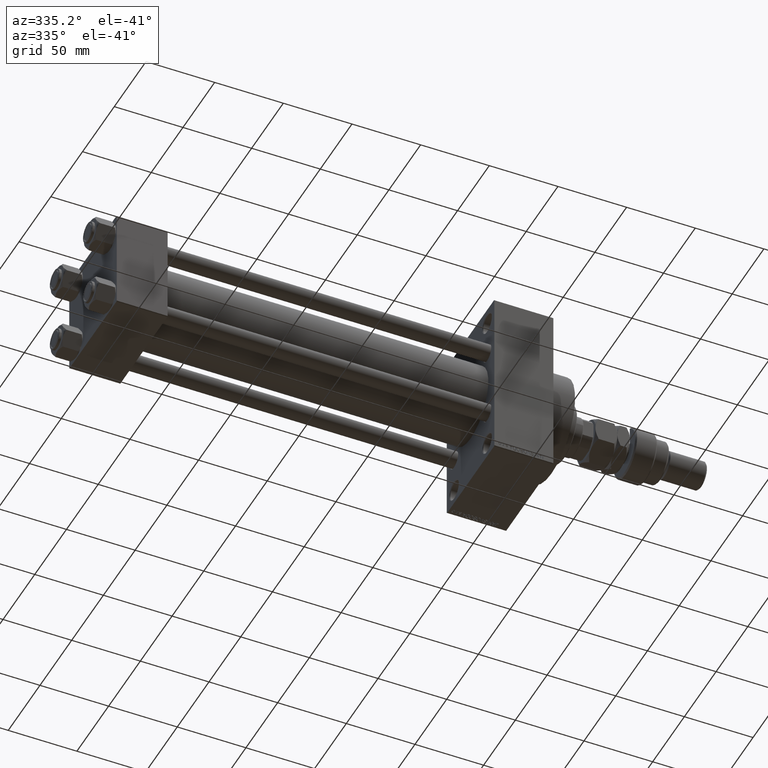
[diagram: clean part render]
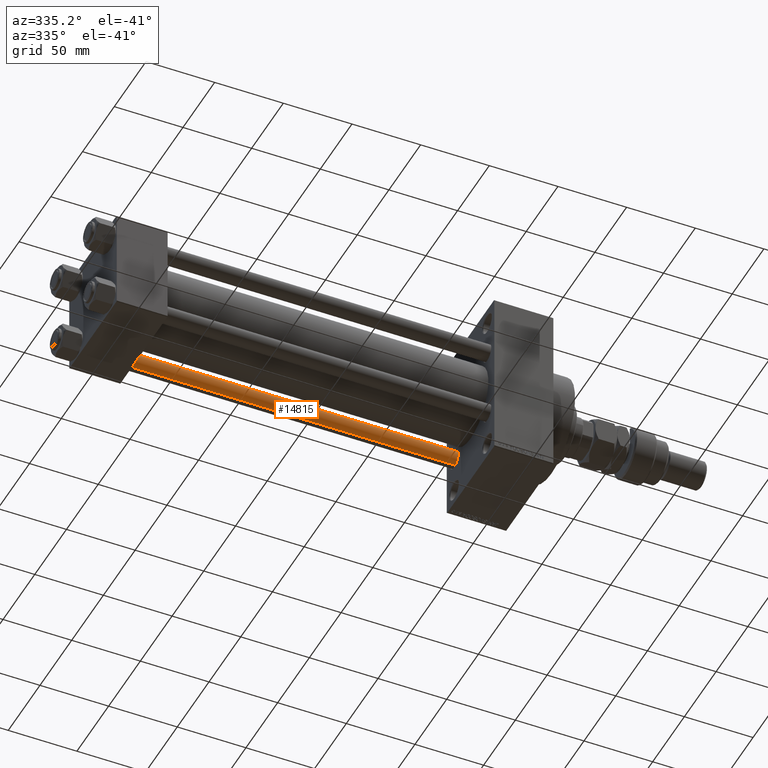
[diagram: same view with one face highlighted and labeled with its STEP entity id]
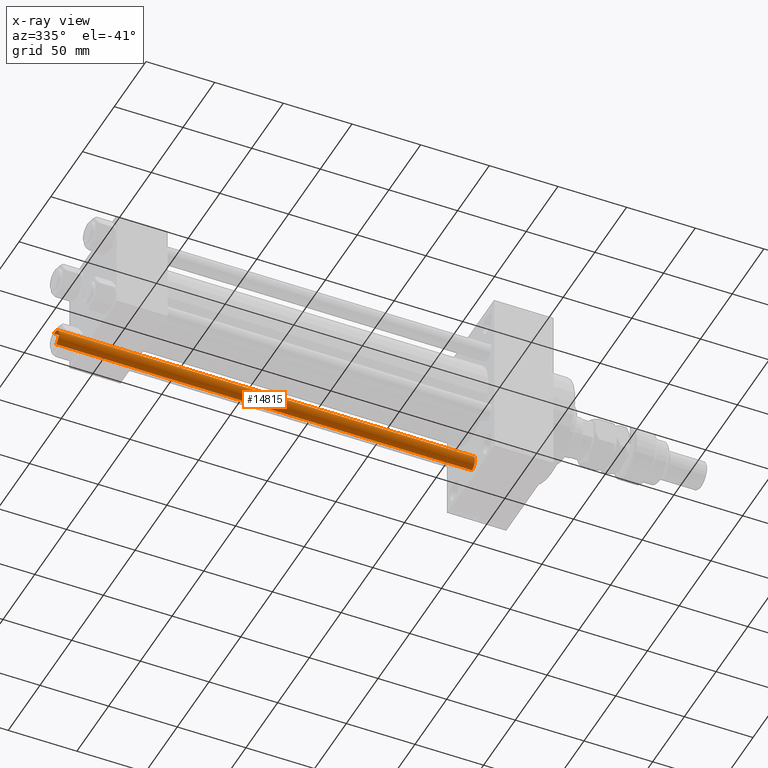
[diagram: x-ray of the same camera — body ghosted, the highlighted face saturated]
A machine part, auxiliary view. The second image highlights one B-rep face of the part: STEP entity #14815.
The next image is the same camera in x-ray: the body ghosted, the highlighted face saturated — about 0% of this face is hidden behind the body in this view.
In plain terms, the highlighted cylindrical surface (edge-blend (fillet) strip) has radius 6 mm, axis along (1, -0, 0).
Its self-contained STEP definition (entity closure, byte-faithful):
#626 = DIRECTION ( 'NONE',  ( 0.000000000000000000, 0.000000000000000000, -1.000000000000000000 ) ) ;
#2727 = DIRECTION ( 'NONE',  ( -0.000000000000000000, -0.000000000000000000, -1.000000000000000000 ) ) ;
#4146 = DIRECTION ( 'NONE',  ( 1.000000000000000000, 0.000000000000000000, 0.000000000000000000 ) ) ;
#4247 = CARTESIAN_POINT ( 'NONE',  ( -6.000000000000000888, 0.000000000000000000, 304.0000000000000000 ) ) ;
#4785 = CARTESIAN_POINT ( 'NONE',  ( 0.000000000000000000, 0.000000000000000000, 304.0000000000000000 ) ) ;
#5964 = EDGE_CURVE ( 'NONE', #21666, #41880, #38725, .T. ) ;
#6347 = CARTESIAN_POINT ( 'NONE',  ( 6.000000000000000888, 7.347880794884120722E-16, 303.5000000000000000 ) ) ;
#6749 = VERTEX_POINT ( 'NONE', #6347 ) ;
#7705 = CARTESIAN_POINT ( 'NONE',  ( 6.000000000000000888, 7.347880794884120722E-16, 0.4999999999999449329 ) ) ;
#8120 = CARTESIAN_POINT ( 'NONE',  ( 0.000000000000000000, 0.000000000000000000, 0.4999999999999449329 ) ) ;
#10819 = ORIENTED_EDGE ( 'NONE', *, *, #34172, .T. ) ;
#11764 = EDGE_LOOP ( 'NONE', ( #30349, #10819, #36656, #21894 ) ) ;
#11936 = DIRECTION ( 'NONE',  ( -0.000000000000000000, -0.000000000000000000, -1.000000000000000000 ) ) ;
#13284 = CARTESIAN_POINT ( 'NONE',  ( -6.000000000000000888, 0.000000000000000000, 303.5000000000000000 ) ) ;
#14815 = ADVANCED_FACE ( 'NONE', ( #16720 ), #49254, .T. ) ;
#16720 = FACE_OUTER_BOUND ( 'NONE', #11764, .T. ) ;
#19851 = AXIS2_PLACEMENT_3D ( 'NONE', #27892, #626, #44821 ) ;
#21666 = VERTEX_POINT ( 'NONE', #37488 ) ;
#21894 = ORIENTED_EDGE ( 'NONE', *, *, #5964, .T. ) ;
#25428 = DIRECTION ( 'NONE',  ( -1.000000000000000000, 0.000000000000000000, 0.000000000000000000 ) ) ;
#27892 = CARTESIAN_POINT ( 'NONE',  ( 0.000000000000000000, 0.000000000000000000, 303.5000000000000000 ) ) ;
#28319 = CIRCLE ( 'NONE', #19851, 6.000000000000000888 ) ;
#29267 = VECTOR ( 'NONE', #11936, 1000.000000000000000 ) ;
#29388 = DIRECTION ( 'NONE',  ( -0.000000000000000000, -0.000000000000000000, -1.000000000000000000 ) ) ;
#30349 = ORIENTED_EDGE ( 'NONE', *, *, #40701, .F. ) ;
#34172 = EDGE_CURVE ( 'NONE', #6749, #52362, #28319, .T. ) ;
#34485 = CARTESIAN_POINT ( 'NONE',  ( 6.000000000000000888, 7.347880794884120722E-16, 304.0000000000000000 ) ) ;
#36656 = ORIENTED_EDGE ( 'NONE', *, *, #41862, .T. ) ;
#37488 = CARTESIAN_POINT ( 'NONE',  ( -6.000000000000000888, 0.000000000000000000, 0.4999999999999449329 ) ) ;
#38725 = CIRCLE ( 'NONE', #50554, 6.000000000000000888 ) ;
#38975 = LINE ( 'NONE', #34485, #42738 ) ;
#40701 = EDGE_CURVE ( 'NONE', #6749, #41880, #38975, .T. ) ;
#41862 = EDGE_CURVE ( 'NONE', #52362, #21666, #43939, .T. ) ;
#41880 = VERTEX_POINT ( 'NONE', #7705 ) ;
#42738 = VECTOR ( 'NONE', #2727, 1000.000000000000000 ) ;
#43939 = LINE ( 'NONE', #4247, #29267 ) ;
#44366 = DIRECTION ( 'NONE',  ( -0.000000000000000000, -0.000000000000000000, 1.000000000000000000 ) ) ;
#44821 = DIRECTION ( 'NONE',  ( 1.000000000000000000, 0.000000000000000000, 0.000000000000000000 ) ) ;
#49254 = CYLINDRICAL_SURFACE ( 'NONE', #51453, 6.000000000000000888 ) ;
#50554 = AXIS2_PLACEMENT_3D ( 'NONE', #8120, #44366, #4146 ) ;
#51453 = AXIS2_PLACEMENT_3D ( 'NONE', #4785, #29388, #25428 ) ;
#52362 = VERTEX_POINT ( 'NONE', #13284 ) ;